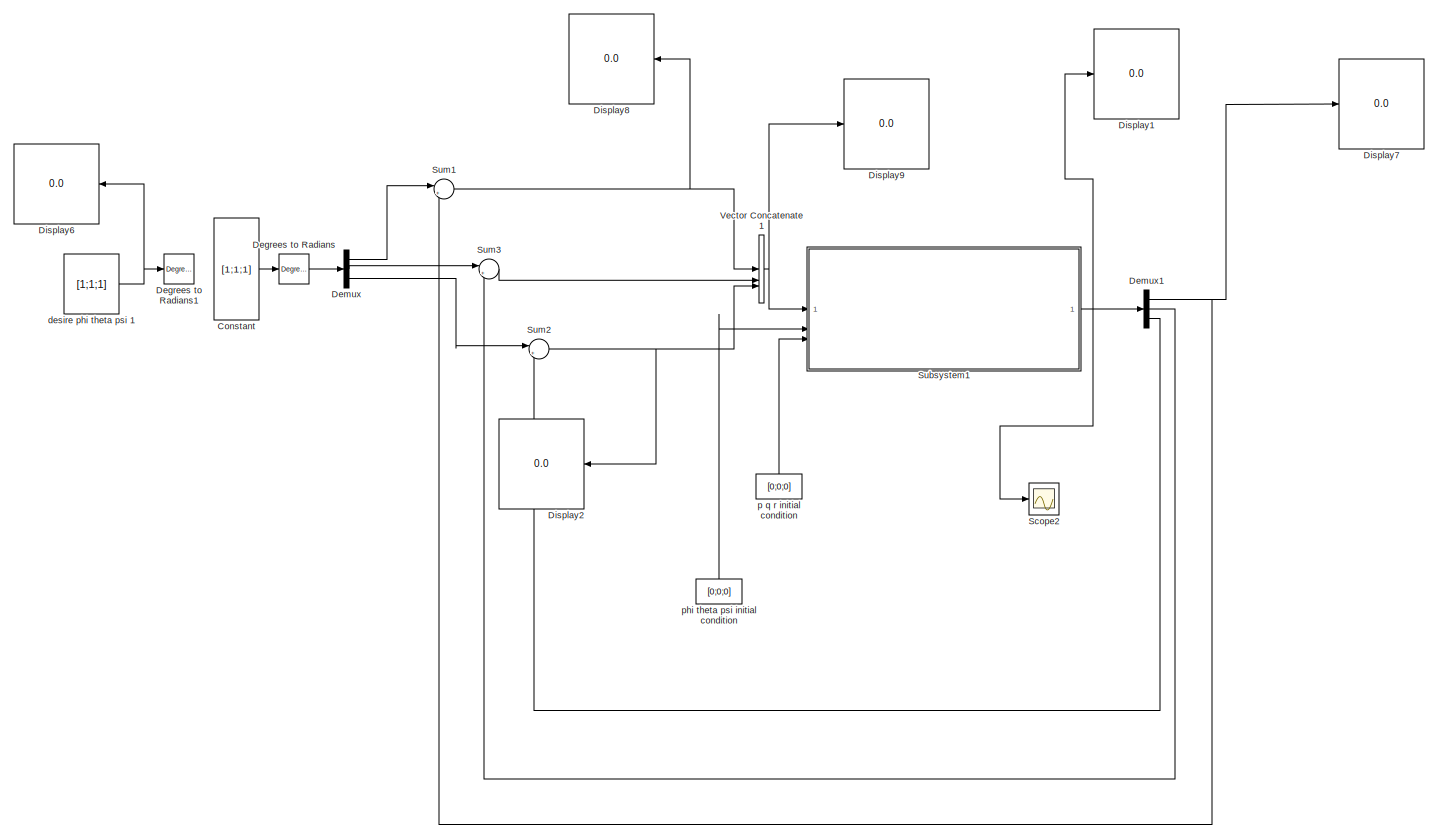
[diagram: root canvas - part 1/1, most of the canvas]
MODEL slx_c5f74b0e797b
KIND model
CONFIG AbsTol = auto
CONFIG EnableMultiTasking = off
CONFIG FixedStep = auto
CONFIG MaxStep = auto
CONFIG MinStep = auto
CONFIG RelTol = 1e-3
CONFIG SampleTimeConstraint = Unconstrained
CONFIG SolverName = VariableStepAuto
CONFIG StartTime = 0.0
CONFIG StopTime = 10.0
BLOCK [Constant]  p q r initial condition
  NameLocation = right
  Value = [0;0;0]
BLOCK [Constant] Constant
  Value = [1;1;1]
BLOCK [Reference] Degrees to Radians  REF=simulink_extras/Transformations/Degrees to
Radians
  SourceBlock = simulink_extras/Transformations/Degrees to\nRadians
  SourceType = DegreesToRadians
BLOCK [Reference] Degrees to Radians1  REF=simulink_extras/Transformations/Degrees to
Radians
  Commented = on
  SourceBlock = simulink_extras/Transformations/Degrees to\nRadians
  SourceType = DegreesToRadians
BLOCK [Demux] Demux
  Outputs = 3
BLOCK [Demux] Demux1
  Outputs = 3
BLOCK [Display] Display1
  Decimation = 1
BLOCK [Display] Display2
  Decimation = 1
  NameLocation = top
BLOCK [Display] Display6
  Decimation = 1
  NameLocation = top
BLOCK [Display] Display7
  Decimation = 1
BLOCK [Display] Display8
  Decimation = 1
  NameLocation = top
BLOCK [Display] Display9
  Decimation = 1
BLOCK [Scope] Scope2
  Floating = off
  NumInputPorts = 1
  ScopeSpecificationString = Simulink.scopes.TimeScopeBlockCfg('CurrentConfiguration', extmgr.ConfigurationSet(extmgr.Configuration('Core','General UI',true),extmgr.Configuration('Core','Source UI',true),extmgr.Configuration('Sources','WiredSimulink',true,'DataLoggingVariableName','ScopeData1'),extmgr.Configuration('Visuals','Time Domain',true,'SerializedDisplays',{struct('MinYLimReal','-0.00587','MaxYLimReal','0.04052','YLab...<+1428ch>
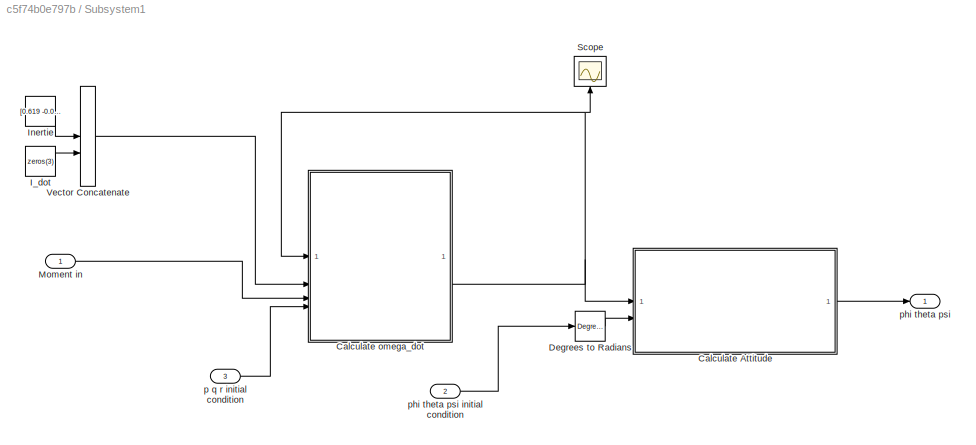
BLOCK [SubSystem] Subsystem1
BLOCK [Inport] Subsystem1/ p q r initial condition
  Port = 3
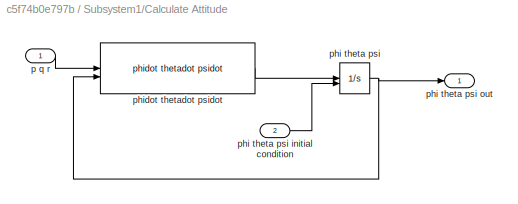
BLOCK [SubSystem] Subsystem1/Calculate Attitude 
BLOCK [Integrator] Subsystem1/Calculate Attitude / phi theta psi
  InitialConditionSource = external
BLOCK [Inport] Subsystem1/Calculate Attitude /p q r
BLOCK [Inport] Subsystem1/Calculate Attitude /phi theta psi initial condition 
  Port = 2
BLOCK [Outport] Subsystem1/Calculate Attitude /phi theta psi out 
BLOCK [Reference] Subsystem1/Calculate Attitude /phidot thetadot psidot  REF=shared6dofsys/DCM & Euler Angles (Euler)/phidot  (lib defined in slx_91fbb8bad28b)
thetadot
psidot
  SourceBlock = shared6dofsys/DCM & Euler Angles (Euler)/phidot\nthetadot\npsidot
  SourceType = SubSystem
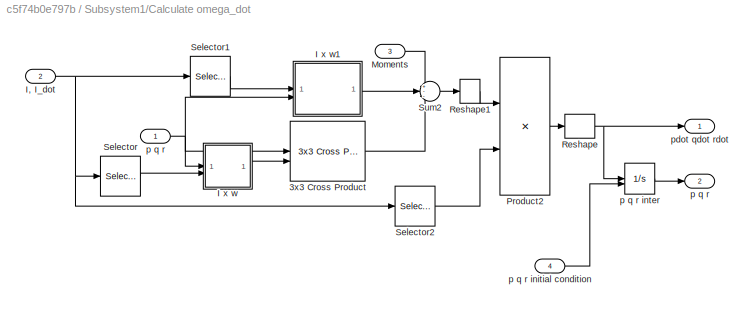
BLOCK [SubSystem] Subsystem1/Calculate omega_dot
  AncestorBlock = shared6dofsys/Calculate omega_dot
  LibrarySourceBlock = shared6dofsys/Calculate omega_dot
  PermitHierarchicalResolution = ExplicitOnly
BLOCK [Reference] Subsystem1/Calculate omega_dot/3x3 Cross Product  REF=sharedutil/3x3 Cross Product
  SourceBlock = sharedutil/3x3 Cross Product
  SourceType = CrossProduct
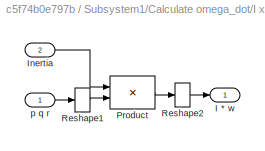
BLOCK [SubSystem] Subsystem1/Calculate omega_dot/I x w
  NameLocation = top
BLOCK [Outport] Subsystem1/Calculate omega_dot/I x w/I * w
  VectorParamsAs1DForOutWhenUnconnected = off
BLOCK [Inport] Subsystem1/Calculate omega_dot/I x w/Inertia
  Port = 2
BLOCK [Product] Subsystem1/Calculate omega_dot/I x w/Product
  InputSameDT = on
  Multiplication = Matrix(*)
  OutDataTypeStr = Inherit: Same as first input
  SaturateOnIntegerOverflow = on
BLOCK [Reshape] Subsystem1/Calculate omega_dot/I x w/Reshape1
  OutputDimensionality = Column vector (2-D)
BLOCK [Reshape] Subsystem1/Calculate omega_dot/I x w/Reshape2
BLOCK [Inport] Subsystem1/Calculate omega_dot/I x w/p q r
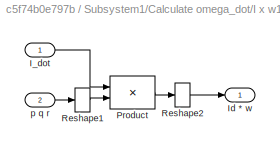
BLOCK [SubSystem] Subsystem1/Calculate omega_dot/I x w1
  NameLocation = top
BLOCK [Inport] Subsystem1/Calculate omega_dot/I x w1/I_dot
BLOCK [Outport] Subsystem1/Calculate omega_dot/I x w1/Id * w
  VectorParamsAs1DForOutWhenUnconnected = off
BLOCK [Product] Subsystem1/Calculate omega_dot/I x w1/Product
  InputSameDT = on
  Multiplication = Matrix(*)
  OutDataTypeStr = Inherit: Same as first input
  SaturateOnIntegerOverflow = on
BLOCK [Reshape] Subsystem1/Calculate omega_dot/I x w1/Reshape1
  OutputDimensionality = Column vector (2-D)
BLOCK [Reshape] Subsystem1/Calculate omega_dot/I x w1/Reshape2
BLOCK [Inport] Subsystem1/Calculate omega_dot/I x w1/p q r
  Port = 2
BLOCK [Inport] Subsystem1/Calculate omega_dot/I, I_dot
  OutDataTypeStr = double
  Port = 2
BLOCK [Inport] Subsystem1/Calculate omega_dot/Moments
  OutDataTypeStr = double
  Port = 3
BLOCK [Product] Subsystem1/Calculate omega_dot/Product2
  Inputs = */
  Multiplication = Matrix(*)
  NameLocation = top
  OutDataTypeStr = Inherit: Same as first input
  SaturateOnIntegerOverflow = on
BLOCK [Reshape] Subsystem1/Calculate omega_dot/Reshape
BLOCK [Reshape] Subsystem1/Calculate omega_dot/Reshape1
  OutputDimensionality = Row vector (2-D)
BLOCK [Selector] Subsystem1/Calculate omega_dot/Selector
  IndexOptions = Index vector (dialog),Select all
  Indices = 1:3,-1
  InputPortWidth = 2
  NumberOfDimensions = 2
  OutputSizes = 1
BLOCK [Selector] Subsystem1/Calculate omega_dot/Selector1
  IndexOptions = Index vector (dialog),Select all
  Indices = 4:6,-1
  InputPortWidth = 2
  NumberOfDimensions = 2
  OutputSizes = 1
BLOCK [Selector] Subsystem1/Calculate omega_dot/Selector2
  IndexOptions = Index vector (dialog),Select all
  Indices = 1:3,-1
  InputPortWidth = 2
  NumberOfDimensions = 2
  OutputSizes = 1
BLOCK [Sum] Subsystem1/Calculate omega_dot/Sum2
  Inputs = +--
  SaturateOnIntegerOverflow = on
BLOCK [Outport] Subsystem1/Calculate omega_dot/p q  r
  Port = 2
BLOCK [Inport] Subsystem1/Calculate omega_dot/p q r
  OutDataTypeStr = double
BLOCK [Inport] Subsystem1/Calculate omega_dot/p q r initial condition
  Port = 4
BLOCK [Integrator] Subsystem1/Calculate omega_dot/p q r inter
  InitialConditionSource = external
BLOCK [Outport] Subsystem1/Calculate omega_dot/pdot qdot rdot
  OutDataTypeStr = double
  VectorParamsAs1DForOutWhenUnconnected = off
BLOCK [Reference] Subsystem1/Degrees to Radians  REF=simulink_extras/Transformations/Degrees to
Radians
  SourceBlock = simulink_extras/Transformations/Degrees to\nRadians
  SourceType = DegreesToRadians
BLOCK [Constant] Subsystem1/I_dot
  Value = zeros(3)
BLOCK [Constant] Subsystem1/Inertie
  Value = [0.619 -0.008 0;-0.008 0.782 0;0 0 1.226]
BLOCK [Inport] Subsystem1/Moment in
BLOCK [Scope] Subsystem1/Scope
  Commented = on
  Floating = off
  NameLocation = right
  NumInputPorts = 1
  ScopeSpecificationString = Simulink.scopes.TimeScopeBlockCfg('CurrentConfiguration', extmgr.ConfigurationSet(extmgr.Configuration('Core','General UI',true),extmgr.Configuration('Core','Source UI',true),extmgr.Configuration('Sources','WiredSimulink',true),extmgr.Configuration('Visuals','Time Domain',true,'SerializedDisplays',{struct('MinYLimReal','-0.03752','MaxYLimReal','0.3375','YLabelReal','','MinYLimMag','0.00000','MaxYL...<+1420ch>
BLOCK [Concatenate] Subsystem1/Vector Concatenate
  Mode = Multidimensional array
BLOCK [Outport] Subsystem1/phi theta psi 
BLOCK [Inport] Subsystem1/phi theta psi initial condition 
  Port = 2
BLOCK [Sum] Sum1
  Inputs = |+-
BLOCK [Sum] Sum2
  Inputs = |+-
BLOCK [Sum] Sum3
  Inputs = |+-
BLOCK [Concatenate] Vector Concatenate1
  NumInputs = 3
BLOCK [Constant] desire phi theta psi 1
  Commented = on
  Value = [1;1;1]
BLOCK [Constant] phi theta psi initial condition 
  NameLocation = right
  Value = [0;0;0]
LINE  p q r initial condition:1 -> Subsystem1:3
LINE Constant:1 -> Degrees to Radians:1
LINE Degrees to Radians:1 -> Demux:1
NET Demux1:1 -> Display7:1, Sum1:2
LINE Demux1:2 -> Sum3:2
LINE Demux1:3 -> Sum2:2
LINE Demux:1 -> Sum1:1
LINE Demux:2 -> Sum3:1
LINE Demux:3 -> Sum2:1
LINE Subsystem1/ p q r initial condition:1 -> Subsystem1/Calculate omega_dot:4
NET Subsystem1/Calculate Attitude / phi theta psi:1 -> Subsystem1/Calculate Attitude /phi theta psi out :1, Subsystem1/Calculate Attitude /phidot thetadot psidot:2
LINE Subsystem1/Calculate Attitude /p q r:1 -> Subsystem1/Calculate Attitude /phidot thetadot psidot:1
LINE Subsystem1/Calculate Attitude /phi theta psi initial condition :1 -> Subsystem1/Calculate Attitude / phi theta psi:2
LINE Subsystem1/Calculate Attitude /phidot thetadot psidot:1 -> Subsystem1/Calculate Attitude / phi theta psi:1
LINE Subsystem1/Calculate Attitude :1 -> Subsystem1/phi theta psi :1
NET Subsystem1/Calculate omega_dot:2 -> Subsystem1/Calculate Attitude :1, Subsystem1/Calculate omega_dot:1, Subsystem1/Scope:1
LINE Subsystem1/Degrees to Radians:1 -> Subsystem1/Calculate Attitude :2
LINE Subsystem1/I_dot:1 -> Subsystem1/Vector Concatenate:2
LINE Subsystem1/Inertie:1 -> Subsystem1/Vector Concatenate:1
LINE Subsystem1/Moment in:1 -> Subsystem1/Calculate omega_dot:3
LINE Subsystem1/Vector Concatenate:1 -> Subsystem1/Calculate omega_dot:2
LINE Subsystem1/phi theta psi initial condition :1 -> Subsystem1/Degrees to Radians:1
NET Subsystem1:1 -> Demux1:1, Display1:1, Scope2:1
NET Sum1:1 -> Display8:1, Vector Concatenate1:1
NET Sum2:1 -> Display2:1, Vector Concatenate1:3
LINE Sum3:1 -> Vector Concatenate1:2
NET Vector Concatenate1:1 -> Display9:1, Subsystem1:1
NET desire phi theta psi 1:1 -> Degrees to Radians1:1, Display6:1
LINE phi theta psi initial condition :1 -> Subsystem1:2
note: NET lines group one-source signal fan-out (src -> all destinations, sorted); 1:1 wires keep LINE
